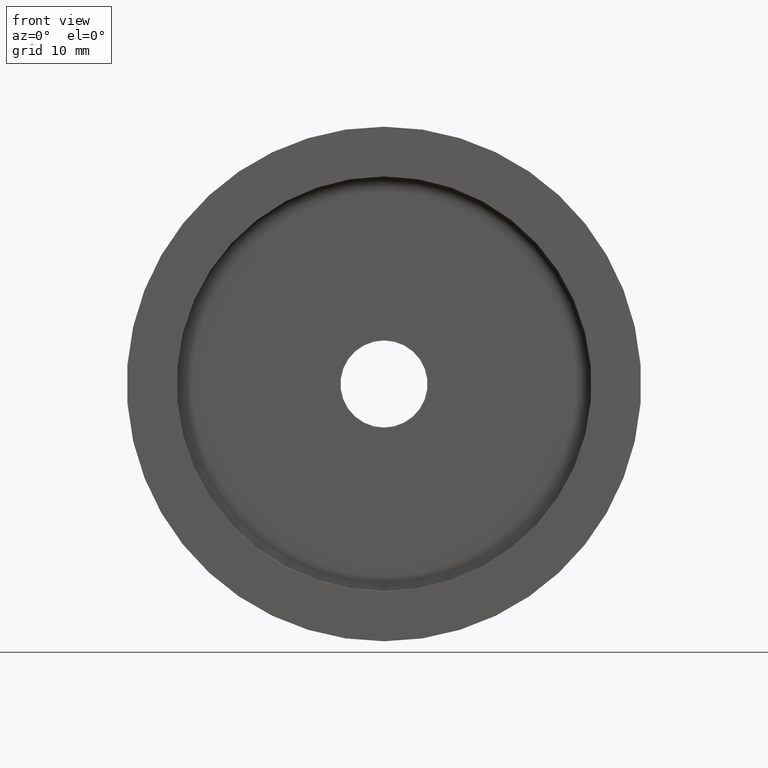
[diagram: clean part render]
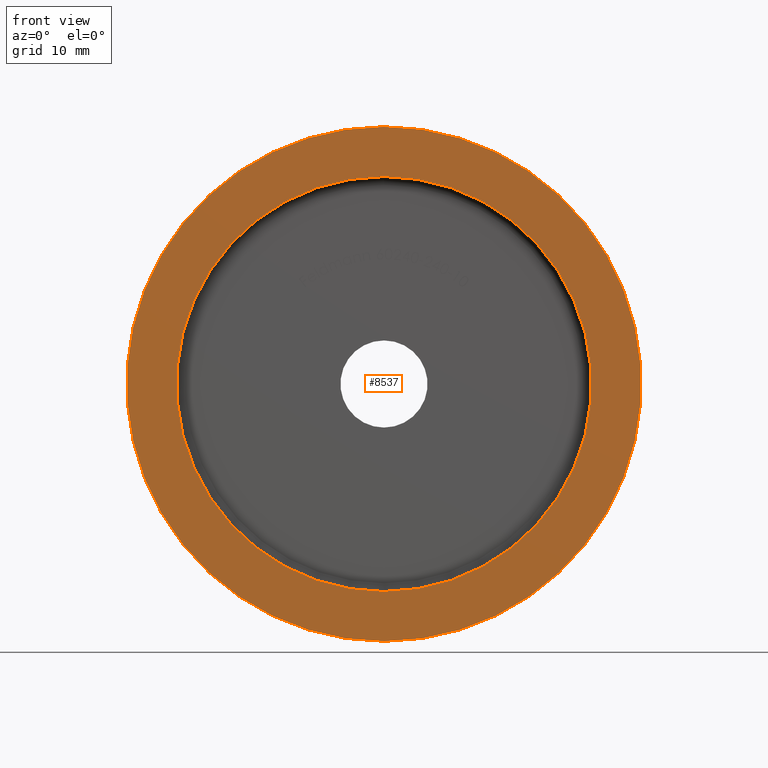
[diagram: same view with one face highlighted and labeled with its STEP entity id]
A machine part, front view. The second image highlights one B-rep face of the part: STEP entity #8537.
In plain terms, the highlighted planar face has unit normal (0, -1, 0).
Its self-contained STEP definition (entity closure, byte-faithful):
#93 = AXIS2_PLACEMENT_3D ( 'NONE', #6683, #12224, #12174 ) ;
#134 = EDGE_CURVE ( 'NONE', #7354, #4005, #5082, .T. ) ;
#275 = EDGE_LOOP ( 'NONE', ( #11022, #13070 ) ) ;
#353 = PLANE ( 'NONE',  #7444 ) ;
#378 = CARTESIAN_POINT ( 'NONE',  ( 0.000000000000000000, -3.469446951953614189E-15, 0.000000000000000000 ) ) ;
#554 = CARTESIAN_POINT ( 'NONE',  ( 0.000000000000000000, 0.000000000000000000, 0.000000000000000000 ) ) ;
#972 = CARTESIAN_POINT ( 'NONE',  ( 0.000000000000000000, 0.000000000000000000, -25.00000000000000000 ) ) ;
#1126 = CIRCLE ( 'NONE', #9482, 31.00000000000000000 ) ;
#1451 = ORIENTED_EDGE ( 'NONE', *, *, #7755, .F. ) ;
#1676 = DIRECTION ( 'NONE',  ( 0.000000000000000000, 0.000000000000000000, -1.000000000000000000 ) ) ;
#1866 = DIRECTION ( 'NONE',  ( -0.000000000000000000, 1.000000000000000000, -0.000000000000000000 ) ) ;
#1883 = CIRCLE ( 'NONE', #12054, 25.00000000000000000 ) ;
#2011 = DIRECTION ( 'NONE',  ( 0.000000000000000000, 0.000000000000000000, 1.000000000000000000 ) ) ;
#2428 = CARTESIAN_POINT ( 'NONE',  ( 3.796405077356795115E-15, -3.469446951953614189E-15, -31.00000000000000000 ) ) ;
#2543 = DIRECTION ( 'NONE',  ( 0.000000000000000000, -1.000000000000000000, 0.000000000000000000 ) ) ;
#3691 = CARTESIAN_POINT ( 'NONE',  ( 3.061616997868383043E-15, 0.000000000000000000, 25.00000000000000000 ) ) ;
#3731 = DIRECTION ( 'NONE',  ( -0.000000000000000000, 1.000000000000000000, -0.000000000000000000 ) ) ;
#4005 = VERTEX_POINT ( 'NONE', #2428 ) ;
#5032 = EDGE_CURVE ( 'NONE', #11396, #12831, #5546, .T. ) ;
#5059 = DIRECTION ( 'NONE',  ( 0.000000000000000000, -1.000000000000000000, 0.000000000000000000 ) ) ;
#5082 = CIRCLE ( 'NONE', #11395, 31.00000000000000000 ) ;
#5341 = FACE_OUTER_BOUND ( 'NONE', #275, .T. ) ;
#5424 = EDGE_LOOP ( 'NONE', ( #1451, #13215 ) ) ;
#5546 = CIRCLE ( 'NONE', #93, 25.00000000000000000 ) ;
#6055 = FACE_BOUND ( 'NONE', #5424, .T. ) ;
#6683 = CARTESIAN_POINT ( 'NONE',  ( 0.000000000000000000, 0.000000000000000000, 0.000000000000000000 ) ) ;
#6895 = CARTESIAN_POINT ( 'NONE',  ( -8.499999999999998224, -1.881192818295456563E-15, 0.000000000000000000 ) ) ;
#7119 = CARTESIAN_POINT ( 'NONE',  ( 0.000000000000000000, -3.469446951953614189E-15, 31.00000000000000000 ) ) ;
#7354 = VERTEX_POINT ( 'NONE', #7119 ) ;
#7444 = AXIS2_PLACEMENT_3D ( 'NONE', #6895, #2543, #11377 ) ;
#7755 = EDGE_CURVE ( 'NONE', #12831, #11396, #1883, .T. ) ;
#8537 = ADVANCED_FACE ( 'NONE', ( #6055, #5341 ), #353, .T. ) ;
#9482 = AXIS2_PLACEMENT_3D ( 'NONE', #378, #3731, #13478 ) ;
#10706 = CARTESIAN_POINT ( 'NONE',  ( 0.000000000000000000, -3.469446951953614189E-15, 0.000000000000000000 ) ) ;
#11022 = ORIENTED_EDGE ( 'NONE', *, *, #134, .F. ) ;
#11377 = DIRECTION ( 'NONE',  ( 0.000000000000000000, -0.000000000000000000, -1.000000000000000000 ) ) ;
#11395 = AXIS2_PLACEMENT_3D ( 'NONE', #10706, #1866, #2011 ) ;
#11396 = VERTEX_POINT ( 'NONE', #3691 ) ;
#12054 = AXIS2_PLACEMENT_3D ( 'NONE', #554, #5059, #1676 ) ;
#12161 = EDGE_CURVE ( 'NONE', #4005, #7354, #1126, .T. ) ;
#12174 = DIRECTION ( 'NONE',  ( 0.000000000000000000, 0.000000000000000000, -1.000000000000000000 ) ) ;
#12224 = DIRECTION ( 'NONE',  ( 0.000000000000000000, -1.000000000000000000, 0.000000000000000000 ) ) ;
#12831 = VERTEX_POINT ( 'NONE', #972 ) ;
#13070 = ORIENTED_EDGE ( 'NONE', *, *, #12161, .F. ) ;
#13215 = ORIENTED_EDGE ( 'NONE', *, *, #5032, .F. ) ;
#13478 = DIRECTION ( 'NONE',  ( 0.000000000000000000, 0.000000000000000000, 1.000000000000000000 ) ) ;